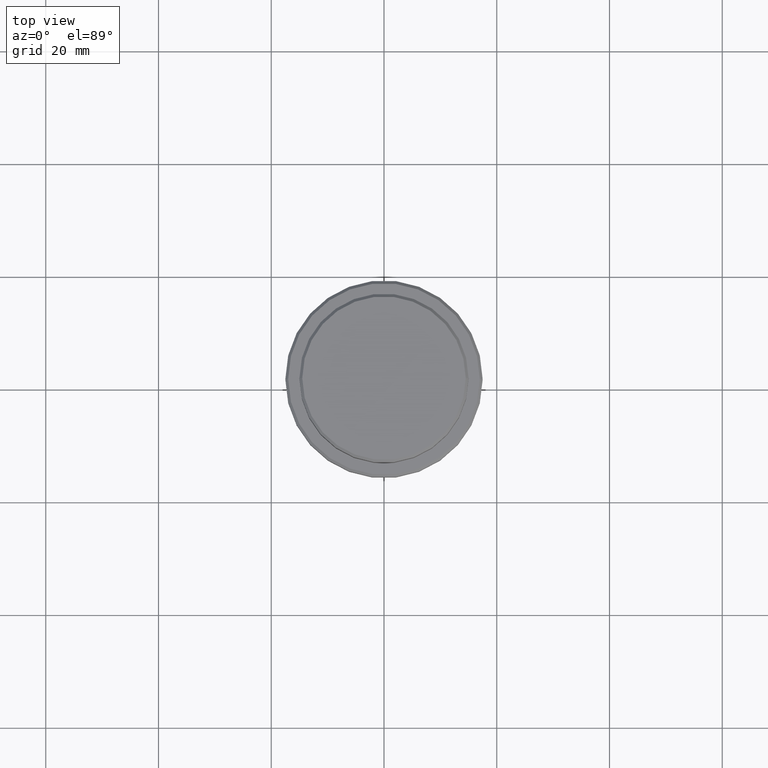
[diagram: clean part render]
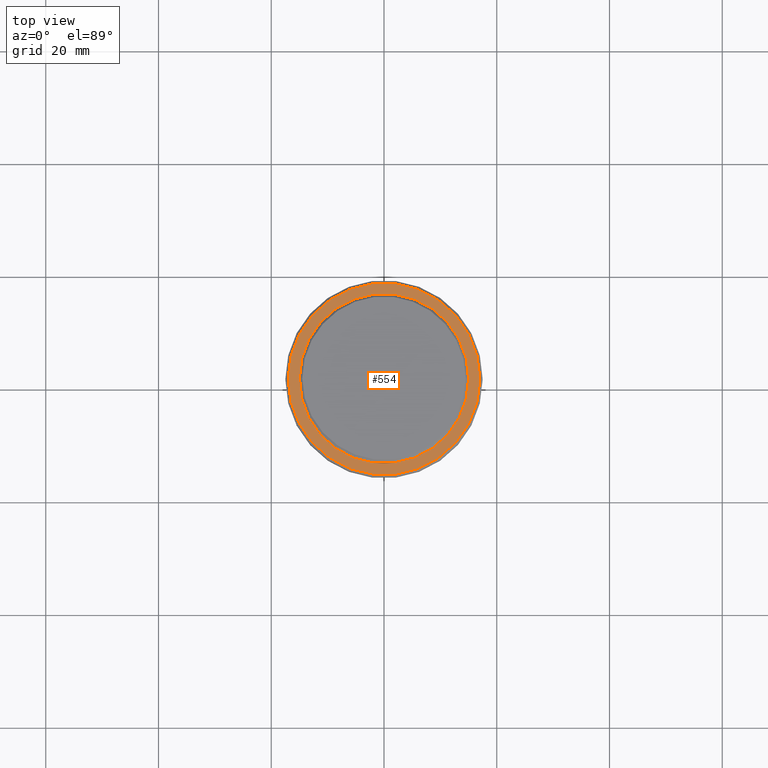
[diagram: same view with one face highlighted and labeled with its STEP entity id]
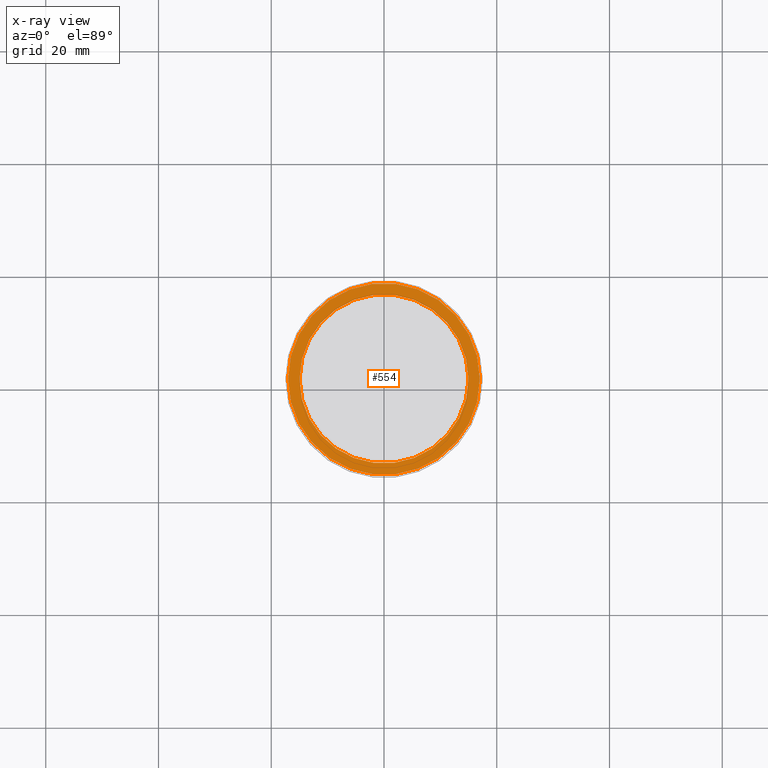
[diagram: x-ray of the same camera — body ghosted, the highlighted face saturated]
A machine part, top view. The second image highlights one B-rep face of the part: STEP entity #554.
The next image is the same camera in x-ray: the body ghosted, the highlighted face saturated — about 0% of this face is hidden behind the body in this view.
In plain terms, the highlighted planar face has unit normal (0, -0, 1).
Its self-contained STEP definition (entity closure, byte-faithful):
#159 = DIRECTION ( 'NONE',  ( 1.000000000000000000, 0.000000000000000000, 0.000000000000000000 ) ) ;
#175 = AXIS2_PLACEMENT_3D ( 'NONE', #350, #1228, #242 ) ;
#182 = ORIENTED_EDGE ( 'NONE', *, *, #742, .T. ) ;
#217 = AXIS2_PLACEMENT_3D ( 'NONE', #1364, #1008, #159 ) ;
#242 = DIRECTION ( 'NONE',  ( 1.000000000000000000, 0.000000000000000000, 0.000000000000000000 ) ) ;
#279 = DIRECTION ( 'NONE',  ( 0.000000000000000000, 0.000000000000000000, -1.000000000000000000 ) ) ;
#300 = EDGE_CURVE ( 'NONE', #891, #1352, #1355, .T. ) ;
#305 = EDGE_LOOP ( 'NONE', ( #182, #1083 ) ) ;
#350 = CARTESIAN_POINT ( 'NONE',  ( 0.000000000000000000, 0.000000000000000000, -9.000000000000000000 ) ) ;
#409 = DIRECTION ( 'NONE',  ( 1.000000000000000000, 0.000000000000000000, 0.000000000000000000 ) ) ;
#419 = CARTESIAN_POINT ( 'NONE',  ( -14.99999999999999289, 1.836970198721028800E-15, -9.000000000000000000 ) ) ;
#425 = DIRECTION ( 'NONE',  ( 0.000000000000000000, -0.000000000000000000, 1.000000000000000000 ) ) ;
#493 = DIRECTION ( 'NONE',  ( 0.000000000000000000, 0.000000000000000000, -1.000000000000000000 ) ) ;
#525 = FACE_BOUND ( 'NONE', #946, .T. ) ;
#552 = ORIENTED_EDGE ( 'NONE', *, *, #300, .T. ) ;
#554 = ADVANCED_FACE ( 'NONE', ( #640, #525 ), #954, .T. ) ;
#562 = CIRCLE ( 'NONE', #175, 17.00000000000000000 ) ;
#570 = CARTESIAN_POINT ( 'NONE',  ( 17.00000000000000000, 2.112515728529184067E-15, -9.000000000000000000 ) ) ;
#605 = CARTESIAN_POINT ( 'NONE',  ( 0.000000000000000000, 0.000000000000000000, -9.000000000000000000 ) ) ;
#640 = FACE_OUTER_BOUND ( 'NONE', #305, .T. ) ;
#641 = CARTESIAN_POINT ( 'NONE',  ( 14.99999999999999289, 0.000000000000000000, -9.000000000000000000 ) ) ;
#651 = VERTEX_POINT ( 'NONE', #570 ) ;
#724 = CIRCLE ( 'NONE', #1254, 14.99999999999999289 ) ;
#742 = EDGE_CURVE ( 'NONE', #1031, #651, #562, .T. ) ;
#791 = AXIS2_PLACEMENT_3D ( 'NONE', #605, #493, #1262 ) ;
#828 = EDGE_CURVE ( 'NONE', #1352, #891, #724, .T. ) ;
#854 = CARTESIAN_POINT ( 'NONE',  ( 0.000000000000000000, 0.000000000000000000, -9.000000000000000000 ) ) ;
#891 = VERTEX_POINT ( 'NONE', #641 ) ;
#940 = ORIENTED_EDGE ( 'NONE', *, *, #828, .T. ) ;
#946 = EDGE_LOOP ( 'NONE', ( #552, #940 ) ) ;
#954 = PLANE ( 'NONE',  #1339 ) ;
#1008 = DIRECTION ( 'NONE',  ( -0.000000000000000000, -0.000000000000000000, 1.000000000000000000 ) ) ;
#1031 = VERTEX_POINT ( 'NONE', #1328 ) ;
#1053 = CIRCLE ( 'NONE', #217, 17.00000000000000000 ) ;
#1064 = EDGE_CURVE ( 'NONE', #651, #1031, #1053, .T. ) ;
#1083 = ORIENTED_EDGE ( 'NONE', *, *, #1064, .T. ) ;
#1228 = DIRECTION ( 'NONE',  ( -0.000000000000000000, -0.000000000000000000, 1.000000000000000000 ) ) ;
#1254 = AXIS2_PLACEMENT_3D ( 'NONE', #854, #279, #409 ) ;
#1262 = DIRECTION ( 'NONE',  ( 1.000000000000000000, 0.000000000000000000, 0.000000000000000000 ) ) ;
#1328 = CARTESIAN_POINT ( 'NONE',  ( -17.00000000000000000, 0.000000000000000000, -9.000000000000000000 ) ) ;
#1339 = AXIS2_PLACEMENT_3D ( 'NONE', #1417, #425, #1397 ) ;
#1352 = VERTEX_POINT ( 'NONE', #419 ) ;
#1355 = CIRCLE ( 'NONE', #791, 14.99999999999999289 ) ;
#1364 = CARTESIAN_POINT ( 'NONE',  ( 0.000000000000000000, 0.000000000000000000, -9.000000000000000000 ) ) ;
#1397 = DIRECTION ( 'NONE',  ( 1.000000000000000000, 0.000000000000000000, 0.000000000000000000 ) ) ;
#1417 = CARTESIAN_POINT ( 'NONE',  ( 0.000000000000000000, 14.49999999999999467, -9.000000000000000000 ) ) ;